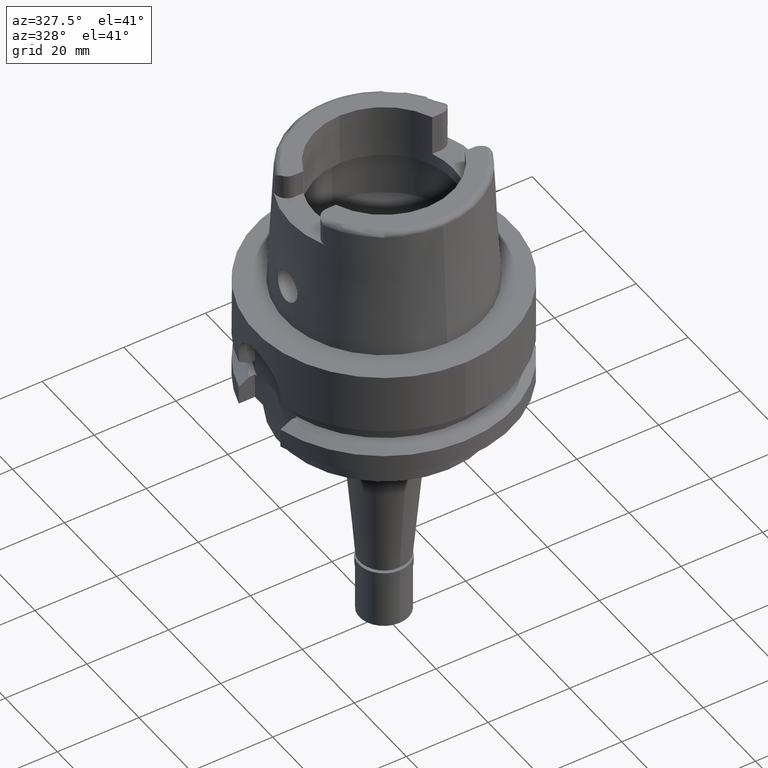
[diagram: clean part render]
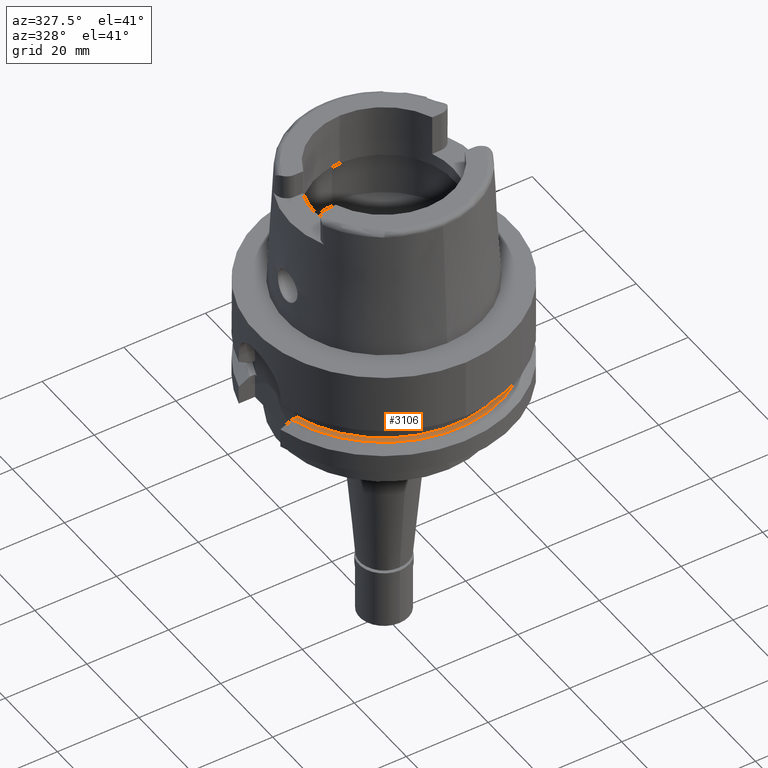
[diagram: same view with one face highlighted and labeled with its STEP entity id]
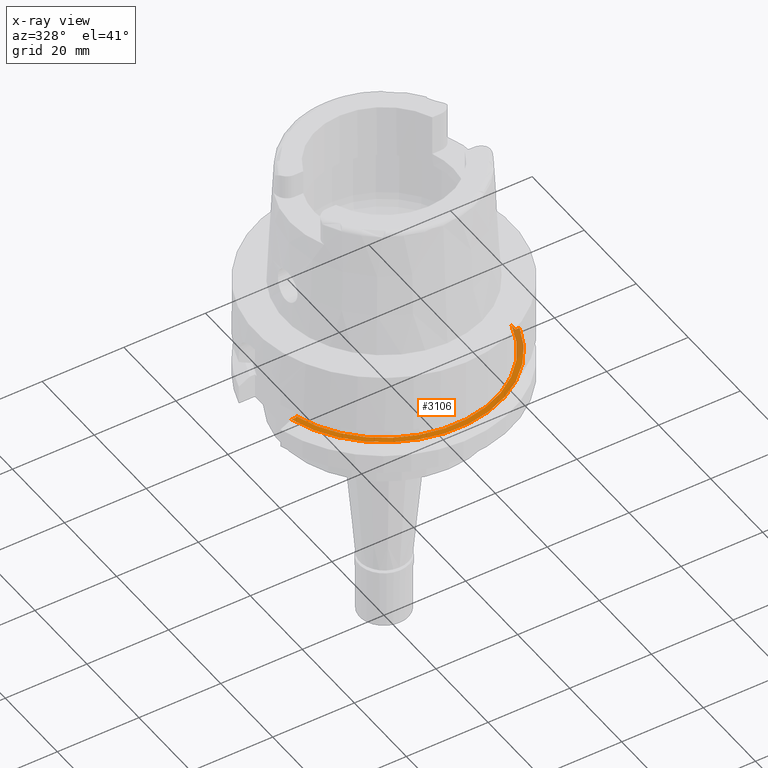
[diagram: x-ray of the same camera — body ghosted, the highlighted face saturated]
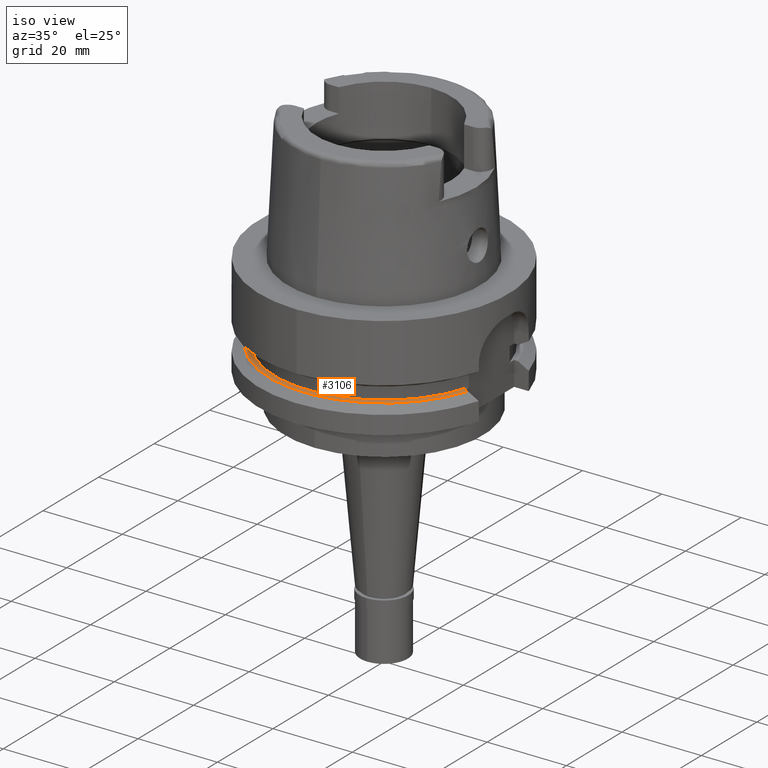
[diagram: same view with one face highlighted and labeled with its STEP entity id]
A machine part, auxiliary view. The second image highlights one B-rep face of the part: STEP entity #3106.
The next image is the same camera in x-ray: the body ghosted, the highlighted face saturated — about 12% of this face is hidden behind the body in this view.
A second angle (iso view) of the same face is appended — the face is thin or edge-on in the first view.
In plain terms, the highlighted planar face has unit normal (0, 0, -1).
Its self-contained STEP definition (entity closure, byte-faithful):
#43 = CARTESIAN_POINT ( 'NONE',  ( 26.50000000000000000, -9.000000000000000000, -19.87500000000000000 ) ) ;
#149 = DIRECTION ( 'NONE',  ( 0.0000000000000000000, -1.000000000000000000, 0.0000000000000000000 ) ) ;
#537 = LINE ( 'NONE', #2266, #5049 ) ;
#588 = VECTOR ( 'NONE', #1981, 1000.000000000000000 ) ;
#678 = ORIENTED_EDGE ( 'NONE', *, *, #4654, .F. ) ;
#1374 = LINE ( 'NONE', #43, #2257 ) ;
#1440 = EDGE_CURVE ( 'NONE', #2394, #3952, #1534, .T. ) ;
#1534 = CIRCLE ( 'NONE', #1986, 27.50000000000001066 ) ;
#1589 = ORIENTED_EDGE ( 'NONE', *, *, #2626, .F. ) ;
#1602 = CIRCLE ( 'NONE', #2511, 28.89759526419000224 ) ;
#1772 = ORIENTED_EDGE ( 'NONE', *, *, #1791, .T. ) ;
#1791 = EDGE_CURVE ( 'NONE', #2218, #3952, #1374, .T. ) ;
#1817 = DIRECTION ( 'NONE',  ( 0.0000000000000000000, 0.0000000000000000000, -1.000000000000000000 ) ) ;
#1981 = DIRECTION ( 'NONE',  ( 0.9999999999999752420, -2.227429064838945451E-07, 7.842712683215812037E-13 ) ) ;
#1986 = AXIS2_PLACEMENT_3D ( 'NONE', #4374, #4781, #3571 ) ;
#2026 = VERTEX_POINT ( 'NONE', #4031 ) ;
#2125 = CARTESIAN_POINT ( 'NONE',  ( -26.50000000000000000, -7.348469228349999938, -19.87500000000000000 ) ) ;
#2218 = VERTEX_POINT ( 'NONE', #4450 ) ;
#2257 = VECTOR ( 'NONE', #5204, 1000.000000000000000 ) ;
#2266 = CARTESIAN_POINT ( 'NONE',  ( -26.50000000000000000, -8.000000000000000000, -19.87500000000000000 ) ) ;
#2394 = VERTEX_POINT ( 'NONE', #2125 ) ;
#2440 = CARTESIAN_POINT ( 'NONE',  ( 26.50000000000000000, -7.348469228349999938, -19.87500000000000000 ) ) ;
#2511 = AXIS2_PLACEMENT_3D ( 'NONE', #4047, #1817, #149 ) ;
#2626 = EDGE_CURVE ( 'NONE', #5597, #2394, #537, .T. ) ;
#2769 = AXIS2_PLACEMENT_3D ( 'NONE', #3233, #4978, #3722 ) ;
#2830 = CARTESIAN_POINT ( 'NONE',  ( -26.50000000000000000, -8.000000000000000000, -19.87500000000000000 ) ) ;
#2927 = VERTEX_POINT ( 'NONE', #4899 ) ;
#2968 = EDGE_CURVE ( 'NONE', #5597, #2026, #4606, .T. ) ;
#3106 = ADVANCED_FACE ( 'NONE', ( #5446 ), #5497, .F. ) ;
#3222 = VECTOR ( 'NONE', #3774, 1000.000000000000000 ) ;
#3233 = CARTESIAN_POINT ( 'NONE',  ( 0.0000000000000000000, 0.0000000000000000000, -19.87500000000000000 ) ) ;
#3310 = EDGE_LOOP ( 'NONE', ( #678, #4743, #1772, #4435, #1589, #4174 ) ) ;
#3571 = DIRECTION ( 'NONE',  ( -0.9636363636363595164, -0.2672170628490889155, 0.0000000000000000000 ) ) ;
#3722 = DIRECTION ( 'NONE',  ( 0.0000000000000000000, -1.000000000000000000, 0.0000000000000000000 ) ) ;
#3774 = DIRECTION ( 'NONE',  ( -0.9999999999999213962, 3.964068088466082154E-07, 5.939057283181126432E-13 ) ) ;
#3952 = VERTEX_POINT ( 'NONE', #2440 ) ;
#3991 = EDGE_CURVE ( 'NONE', #2218, #2927, #4583, .T. ) ;
#4031 = CARTESIAN_POINT ( 'NONE',  ( -27.76817315273000375, -7.999999497287999972, -19.87500000000000000 ) ) ;
#4047 = CARTESIAN_POINT ( 'NONE',  ( 0.0000000000000000000, 0.0000000000000000000, -19.87500000000000000 ) ) ;
#4157 = CARTESIAN_POINT ( 'NONE',  ( 26.50000000000000000, -9.000000000000000000, -19.87500000000000000 ) ) ;
#4174 = ORIENTED_EDGE ( 'NONE', *, *, #2968, .T. ) ;
#4374 = CARTESIAN_POINT ( 'NONE',  ( 0.0000000000000000000, 1.688787936023999784E-14, -19.87500000000000000 ) ) ;
#4435 = ORIENTED_EDGE ( 'NONE', *, *, #1440, .F. ) ;
#4450 = CARTESIAN_POINT ( 'NONE',  ( 26.50000000000000000, -9.000000000000000000, -19.87500000000000000 ) ) ;
#4583 = LINE ( 'NONE', #4157, #588 ) ;
#4606 = LINE ( 'NONE', #2830, #3222 ) ;
#4654 = EDGE_CURVE ( 'NONE', #2927, #2026, #1602, .T. ) ;
#4743 = ORIENTED_EDGE ( 'NONE', *, *, #3991, .F. ) ;
#4781 = DIRECTION ( 'NONE',  ( 0.0000000000000000000, 0.0000000000000000000, 1.000000000000000000 ) ) ;
#4899 = CARTESIAN_POINT ( 'NONE',  ( 27.46035049392999738, -9.000000213910999136, -19.87500000000000000 ) ) ;
#4978 = DIRECTION ( 'NONE',  ( 0.0000000000000000000, 0.0000000000000000000, -1.000000000000000000 ) ) ;
#4992 = CARTESIAN_POINT ( 'NONE',  ( -26.50000000000000000, -8.000000000000000000, -19.87500000000000000 ) ) ;
#5049 = VECTOR ( 'NONE', #5342, 1000.000000000000000 ) ;
#5204 = DIRECTION ( 'NONE',  ( -2.366280491871000116E-14, 1.000000000000000000, 0.0000000000000000000 ) ) ;
#5342 = DIRECTION ( 'NONE',  ( 6.543445989147999960E-14, 1.000000000000000000, 0.0000000000000000000 ) ) ;
#5446 = FACE_OUTER_BOUND ( 'NONE', #3310, .T. ) ;
#5497 = PLANE ( 'NONE',  #2769 ) ;
#5597 = VERTEX_POINT ( 'NONE', #4992 ) ;